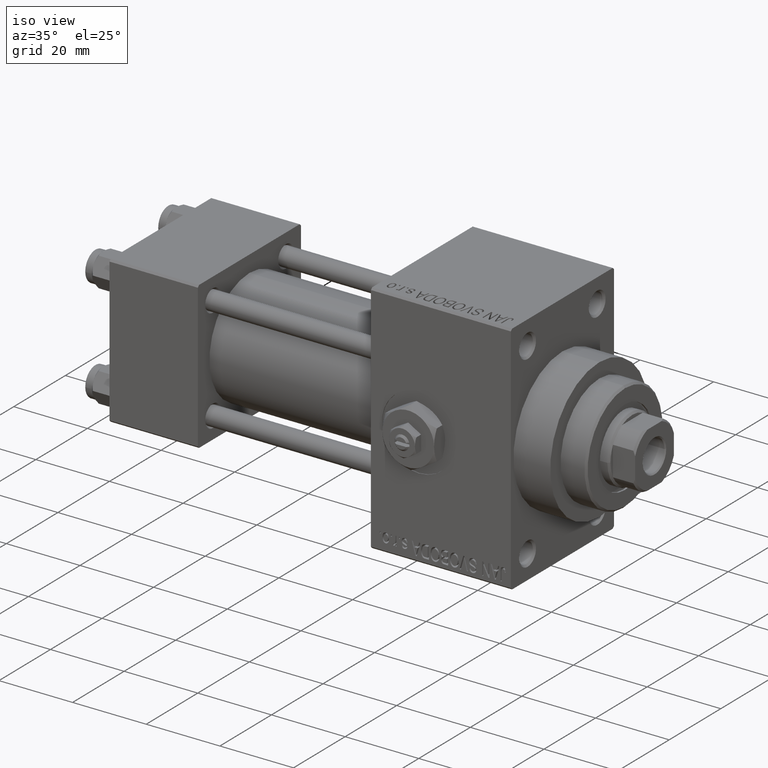
[diagram: clean part render]
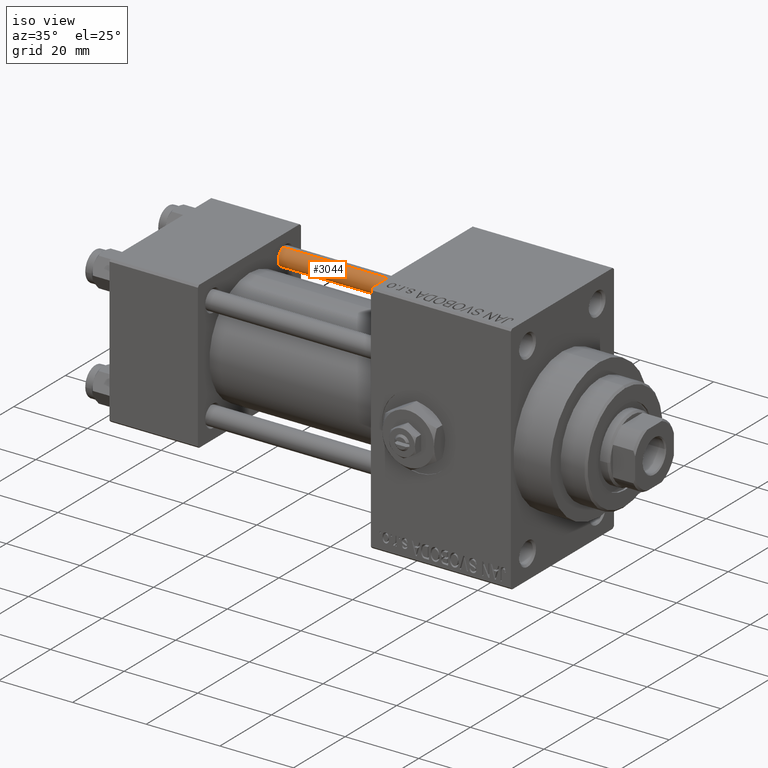
[diagram: same view with one face highlighted and labeled with its STEP entity id]
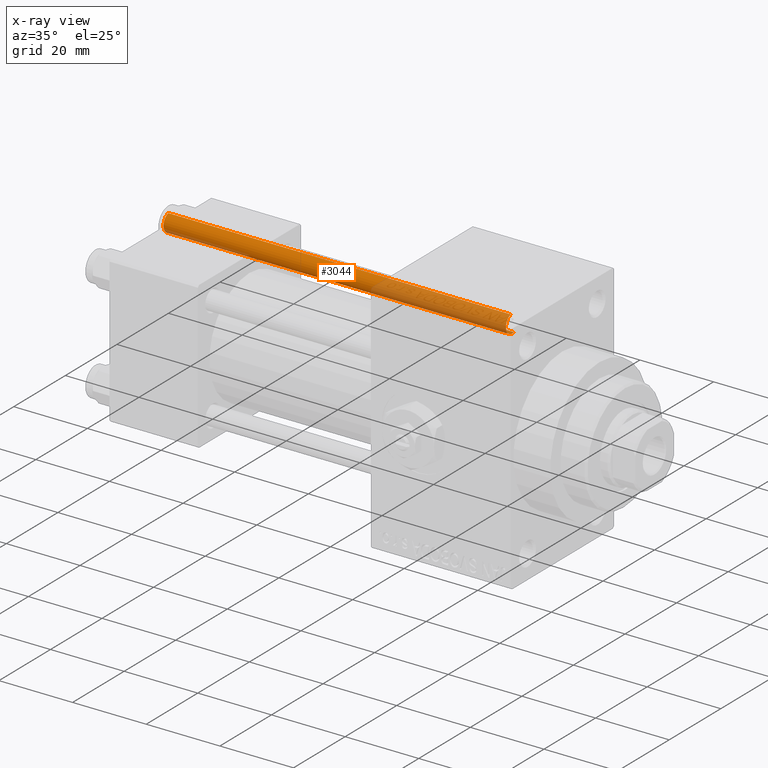
[diagram: x-ray of the same camera — body ghosted, the highlighted face saturated]
A machine part, iso view. The second image highlights one B-rep face of the part: STEP entity #3044.
The next image is the same camera in x-ray: the body ghosted, the highlighted face saturated — about 41% of this face is hidden behind the body in this view.
In plain terms, the highlighted cylindrical surface (edge-blend (fillet) strip) has radius 2.5 mm, axis along (-1, -0, 0).
Its self-contained STEP definition (entity closure, byte-faithful):
#299 = CARTESIAN_POINT ( 'NONE',  ( -2.500000000000000000, 0.000000000000000000, 93.50000000000001421 ) ) ;
#990 = LINE ( 'NONE', #4432, #27597 ) ;
#1261 = CARTESIAN_POINT ( 'NONE',  ( -2.500000000000000000, 0.000000000000000000, 94.00000000000000000 ) ) ;
#3044 = ADVANCED_FACE ( 'NONE', ( #33248 ), #40875, .T. ) ;
#3081 = CARTESIAN_POINT ( 'NONE',  ( 0.000000000000000000, 0.000000000000000000, 0.5000000000000004441 ) ) ;
#3221 = EDGE_CURVE ( 'NONE', #45505, #36669, #990, .T. ) ;
#4432 = CARTESIAN_POINT ( 'NONE',  ( 2.500000000000000000, 3.061616997868383141E-16, 94.00000000000000000 ) ) ;
#4960 = LINE ( 'NONE', #1261, #9345 ) ;
#5394 = DIRECTION ( 'NONE',  ( -0.000000000000000000, -0.000000000000000000, 1.000000000000000000 ) ) ;
#9130 = EDGE_LOOP ( 'NONE', ( #21695, #42069, #24510, #14917 ) ) ;
#9345 = VECTOR ( 'NONE', #42125, 1000.000000000000000 ) ;
#13475 = EDGE_CURVE ( 'NONE', #42172, #36669, #15450, .T. ) ;
#14562 = DIRECTION ( 'NONE',  ( -0.000000000000000000, -0.000000000000000000, -1.000000000000000000 ) ) ;
#14917 = ORIENTED_EDGE ( 'NONE', *, *, #13475, .T. ) ;
#14991 = CIRCLE ( 'NONE', #42494, 2.500000000000000000 ) ;
#15450 = CIRCLE ( 'NONE', #21728, 2.500000000000000000 ) ;
#17352 = CARTESIAN_POINT ( 'NONE',  ( 2.500000000000000000, 3.061616997868383141E-16, 0.5000000000000004441 ) ) ;
#21695 = ORIENTED_EDGE ( 'NONE', *, *, #3221, .F. ) ;
#21728 = AXIS2_PLACEMENT_3D ( 'NONE', #3081, #5394, #43046 ) ;
#24510 = ORIENTED_EDGE ( 'NONE', *, *, #42330, .T. ) ;
#26113 = EDGE_CURVE ( 'NONE', #45505, #44668, #14991, .T. ) ;
#26125 = CARTESIAN_POINT ( 'NONE',  ( 0.000000000000000000, 0.000000000000000000, 94.00000000000000000 ) ) ;
#27309 = CARTESIAN_POINT ( 'NONE',  ( 2.500000000000000000, 3.061616997868383141E-16, 93.50000000000001421 ) ) ;
#27597 = VECTOR ( 'NONE', #38648, 1000.000000000000000 ) ;
#28124 = DIRECTION ( 'NONE',  ( 1.000000000000000000, 0.000000000000000000, 0.000000000000000000 ) ) ;
#32291 = CARTESIAN_POINT ( 'NONE',  ( 0.000000000000000000, 0.000000000000000000, 93.50000000000001421 ) ) ;
#33248 = FACE_OUTER_BOUND ( 'NONE', #9130, .T. ) ;
#36669 = VERTEX_POINT ( 'NONE', #17352 ) ;
#38648 = DIRECTION ( 'NONE',  ( -0.000000000000000000, -0.000000000000000000, -1.000000000000000000 ) ) ;
#40875 = CYLINDRICAL_SURFACE ( 'NONE', #42490, 2.500000000000000000 ) ;
#42069 = ORIENTED_EDGE ( 'NONE', *, *, #26113, .T. ) ;
#42125 = DIRECTION ( 'NONE',  ( -0.000000000000000000, -0.000000000000000000, -1.000000000000000000 ) ) ;
#42172 = VERTEX_POINT ( 'NONE', #47340 ) ;
#42330 = EDGE_CURVE ( 'NONE', #44668, #42172, #4960, .T. ) ;
#42490 = AXIS2_PLACEMENT_3D ( 'NONE', #26125, #14562, #44561 ) ;
#42494 = AXIS2_PLACEMENT_3D ( 'NONE', #32291, #47792, #28124 ) ;
#43046 = DIRECTION ( 'NONE',  ( 1.000000000000000000, 0.000000000000000000, 0.000000000000000000 ) ) ;
#44561 = DIRECTION ( 'NONE',  ( -1.000000000000000000, 0.000000000000000000, 0.000000000000000000 ) ) ;
#44668 = VERTEX_POINT ( 'NONE', #299 ) ;
#45505 = VERTEX_POINT ( 'NONE', #27309 ) ;
#47340 = CARTESIAN_POINT ( 'NONE',  ( -2.500000000000000000, 0.000000000000000000, 0.5000000000000004441 ) ) ;
#47792 = DIRECTION ( 'NONE',  ( 0.000000000000000000, 0.000000000000000000, -1.000000000000000000 ) ) ;